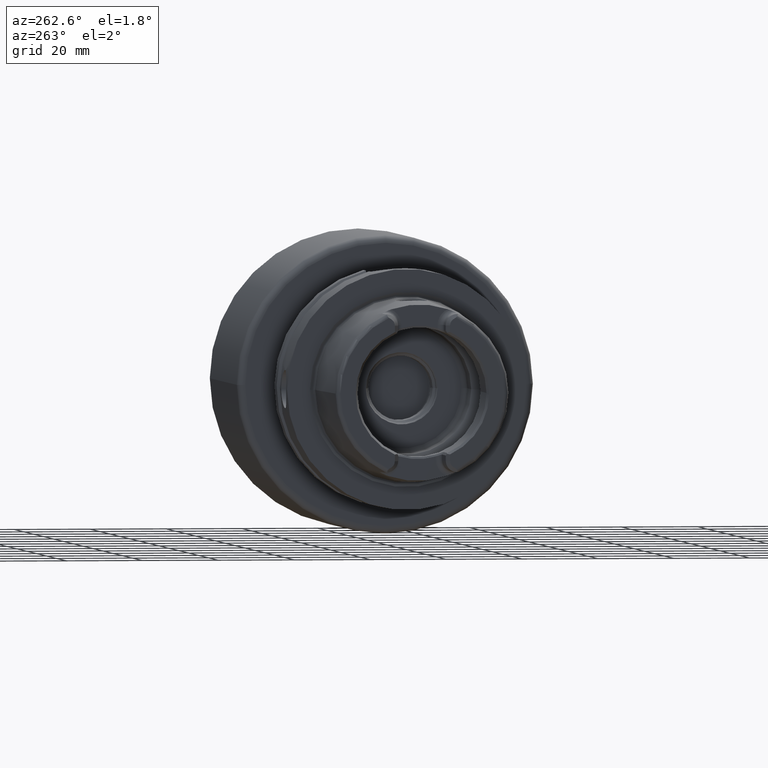
[diagram: clean part render]
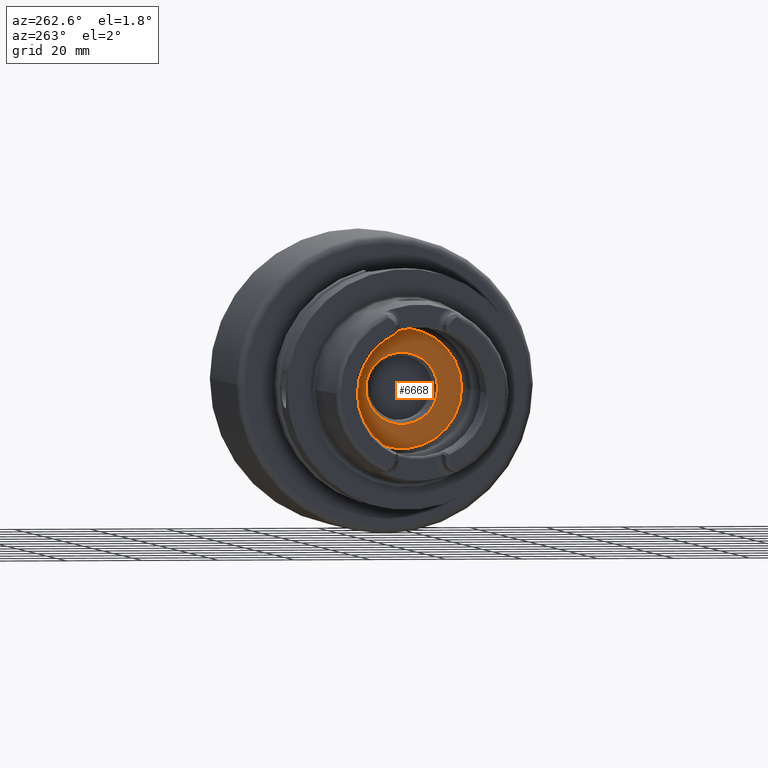
[diagram: same view with one face highlighted and labeled with its STEP entity id]
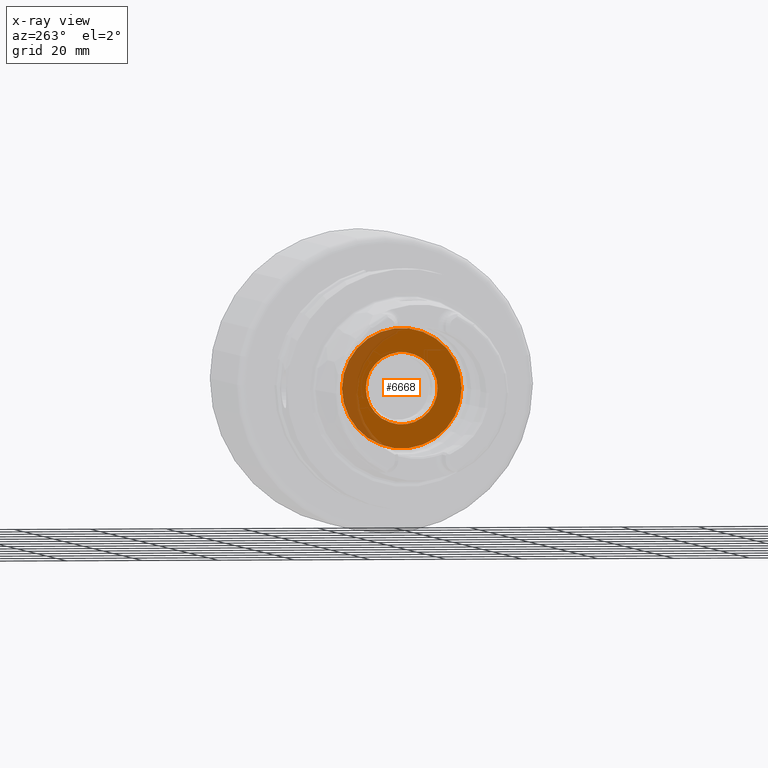
[diagram: x-ray of the same camera — body ghosted, the highlighted face saturated]
A machine part, auxiliary view. The second image highlights one B-rep face of the part: STEP entity #6668.
The next image is the same camera in x-ray: the body ghosted, the highlighted face saturated — about 24% of this face is hidden behind the body in this view.
In plain terms, the highlighted planar face has unit normal (1, 0, 0).
Its self-contained STEP definition (entity closure, byte-faithful):
#2657=CARTESIAN_POINT('',(1.E1,0.E0,0.E0));
#2658=DIRECTION('',(1.E0,0.E0,0.E0));
#2659=DIRECTION('',(0.E0,1.E0,0.E0));
#2660=AXIS2_PLACEMENT_3D('',#2657,#2658,#2659);
#2667=CARTESIAN_POINT('',(1.E1,0.E0,0.E0));
#2668=DIRECTION('',(-1.E0,0.E0,0.E0));
#2669=DIRECTION('',(0.E0,1.E0,0.E0));
#2670=AXIS2_PLACEMENT_3D('',#2667,#2668,#2669);
#2677=CARTESIAN_POINT('',(1.E1,0.E0,0.E0));
#2678=DIRECTION('',(1.E0,0.E0,0.E0));
#2679=DIRECTION('',(0.E0,1.E0,0.E0));
#2680=AXIS2_PLACEMENT_3D('',#2677,#2678,#2679);
#2682=CARTESIAN_POINT('',(1.E1,0.E0,0.E0));
#2683=DIRECTION('',(1.E0,0.E0,0.E0));
#2684=DIRECTION('',(0.E0,-1.E0,0.E0));
#2685=AXIS2_PLACEMENT_3D('',#2682,#2683,#2684);
#2885=CARTESIAN_POINT('',(1.E1,1.575E1,0.E0));
#2887=VERTEX_POINT('',#2885);
#2889=CARTESIAN_POINT('',(1.E1,-1.575E1,0.E0));
#2891=VERTEX_POINT('',#2889);
#3136=CARTESIAN_POINT('',(1.E1,9.451175134595E0,0.E0));
#3137=CARTESIAN_POINT('',(1.E1,-9.451175134595E0,0.E0));
#3138=VERTEX_POINT('',#3136);
#3139=VERTEX_POINT('',#3137);
#6653=CARTESIAN_POINT('',(1.E1,0.E0,0.E0));
#6654=DIRECTION('',(1.E0,0.E0,0.E0));
#6655=DIRECTION('',(0.E0,-1.E0,0.E0));
#6656=AXIS2_PLACEMENT_3D('',#6653,#6654,#6655);
#6657=PLANE('',#6656);
#6658=ORIENTED_EDGE('',*,*,#6635,.T.);
#6659=ORIENTED_EDGE('',*,*,#6646,.F.);
#6660=EDGE_LOOP('',(#6658,#6659));
#6661=FACE_OUTER_BOUND('',#6660,.F.);
#6663=ORIENTED_EDGE('',*,*,#6662,.F.);
#6665=ORIENTED_EDGE('',*,*,#6664,.F.);
#6666=EDGE_LOOP('',(#6663,#6665));
#6667=FACE_BOUND('',#6666,.F.);
#6668=ADVANCED_FACE('',(#6661,#6667),#6657,.F.);
#2661=CIRCLE('',#2660,1.575E1);
#2671=CIRCLE('',#2670,1.575E1);
#2681=CIRCLE('',#2680,9.451175134595E0);
#2686=CIRCLE('',#2685,9.451175134595E0);
#6635=EDGE_CURVE('',#2887,#2891,#2661,.T.);
#6646=EDGE_CURVE('',#2887,#2891,#2671,.T.);
#6662=EDGE_CURVE('',#3138,#3139,#2681,.T.);
#6664=EDGE_CURVE('',#3139,#3138,#2686,.T.);